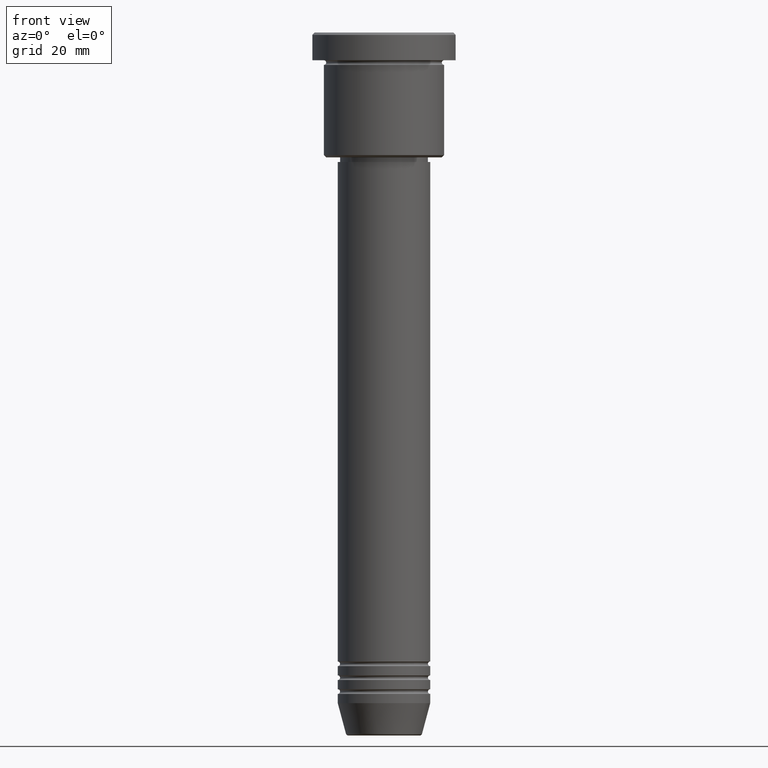
[diagram: clean part render]
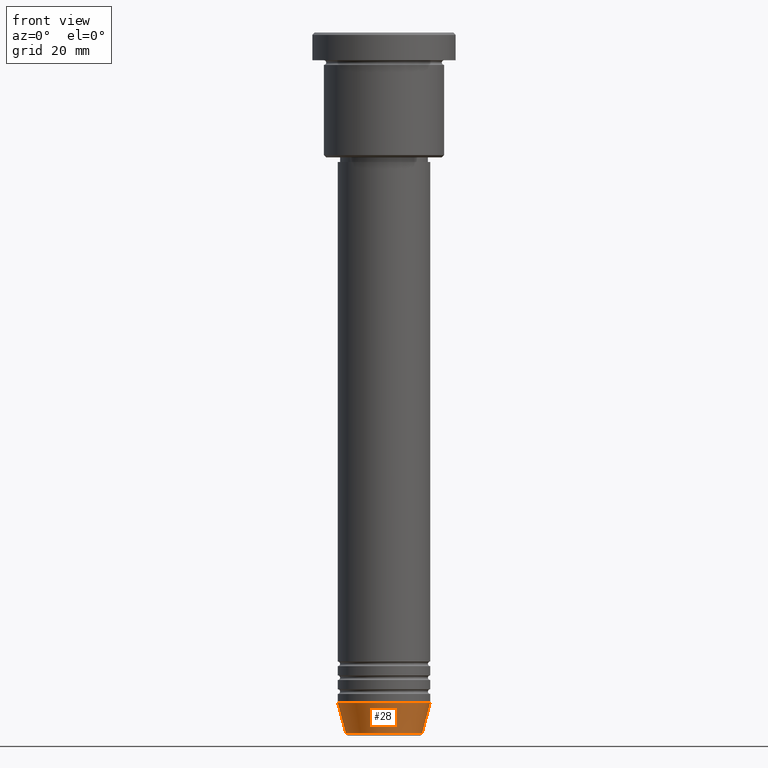
[diagram: same view with one face highlighted and labeled with its STEP entity id]
A machine part, front view. The second image highlights one B-rep face of the part: STEP entity #28.
In plain terms, the highlighted conical surface has half-angle 15 deg.
Its self-contained STEP definition (entity closure, byte-faithful):
#13 = CARTESIAN_POINT ( 'NONE',  ( -8.223655072137198374, 1.115877042642912448E-15, -151.6294095225512137 ) ) ;
#25 = DIRECTION ( 'NONE',  ( 1.000000000000000000, 0.000000000000000000, 0.000000000000000000 ) ) ;
#28 = ADVANCED_FACE ( 'NONE', ( #745 ), #471, .T. ) ;
#50 = AXIS2_PLACEMENT_3D ( 'NONE', #932, #1128, #275 ) ;
#106 = DIRECTION ( 'NONE',  ( -0.000000000000000000, -0.000000000000000000, 1.000000000000000000 ) ) ;
#160 = ORIENTED_EDGE ( 'NONE', *, *, #320, .T. ) ;
#174 = CARTESIAN_POINT ( 'NONE',  ( -10.00000000000000000, 1.224646799147353256E-15, -145.0000000000000000 ) ) ;
#182 = VERTEX_POINT ( 'NONE', #13 ) ;
#189 = LINE ( 'NONE', #174, #536 ) ;
#275 = DIRECTION ( 'NONE',  ( 1.000000000000000000, 0.000000000000000000, 0.000000000000000000 ) ) ;
#313 = DIRECTION ( 'NONE',  ( -0.000000000000000000, -0.000000000000000000, 1.000000000000000000 ) ) ;
#320 = EDGE_CURVE ( 'NONE', #182, #556, #829, .T. ) ;
#339 = CARTESIAN_POINT ( 'NONE',  ( 10.00000000000000000, 0.000000000000000000, -145.0000000000000000 ) ) ;
#372 = EDGE_LOOP ( 'NONE', ( #1002, #160, #909, #1048 ) ) ;
#405 = CIRCLE ( 'NONE', #50, 10.00000000000000000 ) ;
#418 = CARTESIAN_POINT ( 'NONE',  ( 8.223655072137198374, 0.000000000000000000, -151.6294095225512137 ) ) ;
#471 = CONICAL_SURFACE ( 'NONE', #955, 10.00000000000000000, 0.2617993877991500740 ) ;
#473 = VERTEX_POINT ( 'NONE', #879 ) ;
#505 = LINE ( 'NONE', #339, #673 ) ;
#536 = VECTOR ( 'NONE', #719, 1000.000000000000000 ) ;
#556 = VERTEX_POINT ( 'NONE', #418 ) ;
#616 = AXIS2_PLACEMENT_3D ( 'NONE', #776, #313, #25 ) ;
#671 = EDGE_CURVE ( 'NONE', #556, #473, #505, .T. ) ;
#673 = VECTOR ( 'NONE', #1151, 1000.000000000000000 ) ;
#719 = DIRECTION ( 'NONE',  ( -0.2588190451025213501, 3.169619151431772337E-17, 0.9659258262890680902 ) ) ;
#745 = FACE_OUTER_BOUND ( 'NONE', #372, .T. ) ;
#776 = CARTESIAN_POINT ( 'NONE',  ( 0.000000000000000000, 0.000000000000000000, -151.6294095225512137 ) ) ;
#797 = VERTEX_POINT ( 'NONE', #817 ) ;
#804 = EDGE_CURVE ( 'NONE', #797, #473, #405, .T. ) ;
#817 = CARTESIAN_POINT ( 'NONE',  ( -10.00000000000000000, 1.224646799147353256E-15, -145.0000000000000000 ) ) ;
#829 = CIRCLE ( 'NONE', #616, 8.223655072137198374 ) ;
#879 = CARTESIAN_POINT ( 'NONE',  ( 10.00000000000000000, 0.000000000000000000, -145.0000000000000000 ) ) ;
#894 = EDGE_CURVE ( 'NONE', #182, #797, #189, .T. ) ;
#909 = ORIENTED_EDGE ( 'NONE', *, *, #671, .T. ) ;
#932 = CARTESIAN_POINT ( 'NONE',  ( 0.000000000000000000, 0.000000000000000000, -145.0000000000000000 ) ) ;
#955 = AXIS2_PLACEMENT_3D ( 'NONE', #1103, #106, #1018 ) ;
#1002 = ORIENTED_EDGE ( 'NONE', *, *, #894, .F. ) ;
#1018 = DIRECTION ( 'NONE',  ( 1.000000000000000000, 0.000000000000000000, 0.000000000000000000 ) ) ;
#1048 = ORIENTED_EDGE ( 'NONE', *, *, #804, .F. ) ;
#1103 = CARTESIAN_POINT ( 'NONE',  ( 0.000000000000000000, 0.000000000000000000, -145.0000000000000000 ) ) ;
#1128 = DIRECTION ( 'NONE',  ( -0.000000000000000000, -0.000000000000000000, 1.000000000000000000 ) ) ;
#1151 = DIRECTION ( 'NONE',  ( 0.2588190451025213501, 0.000000000000000000, 0.9659258262890680902 ) ) ;